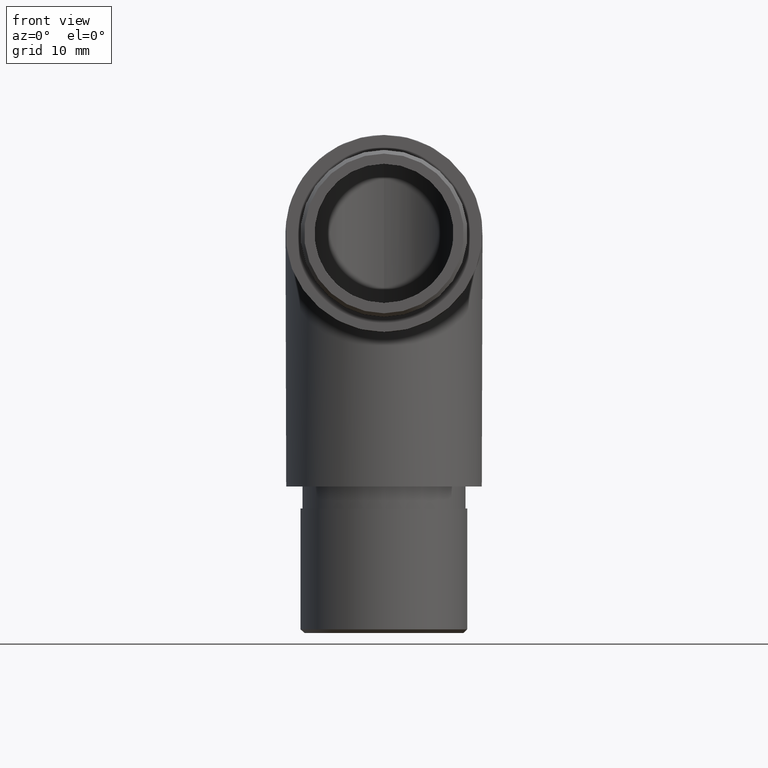
[diagram: clean part render]
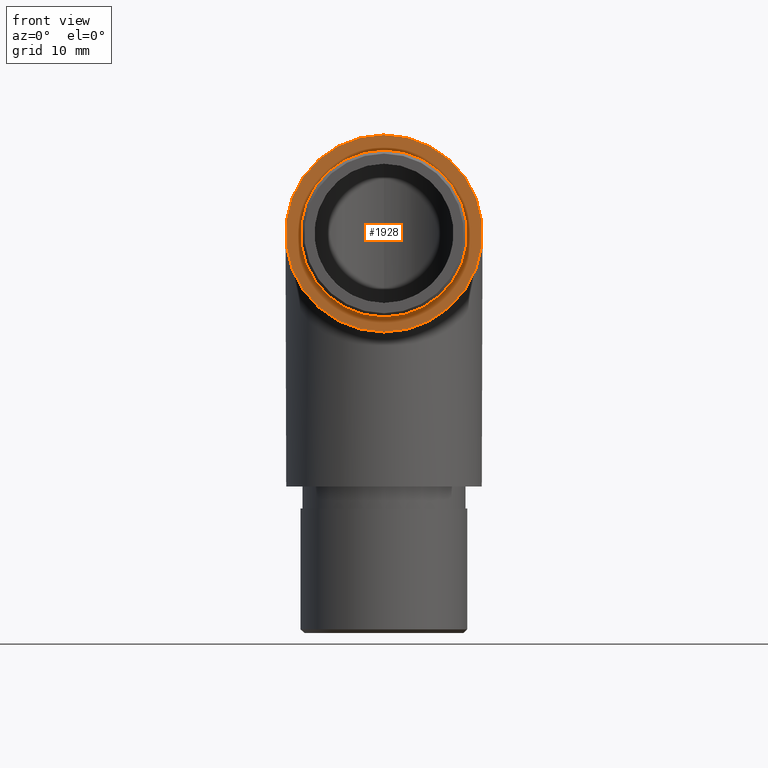
[diagram: same view with one face highlighted and labeled with its STEP entity id]
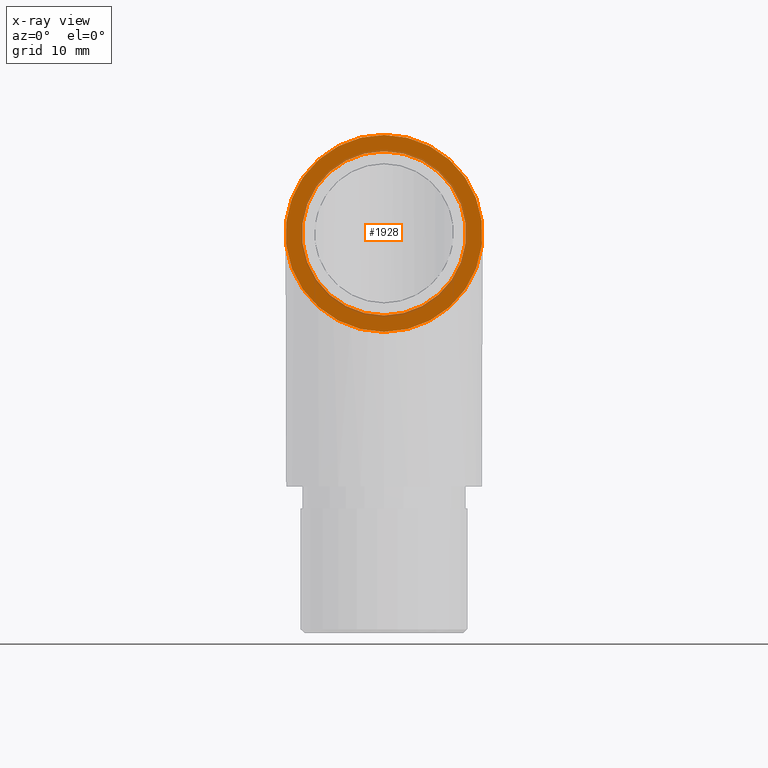
[diagram: x-ray of the same camera — body ghosted, the highlighted face saturated]
A machine part, front view. The second image highlights one B-rep face of the part: STEP entity #1928.
The next image is the same camera in x-ray: the body ghosted, the highlighted face saturated — about 8% of this face is hidden behind the body in this view.
In plain terms, the highlighted planar face has unit normal (0, 1, 0).
Its self-contained STEP definition (entity closure, byte-faithful):
#211 = DIRECTION ( 'NONE',  ( 0.0000000000000000000, 1.000000000000000000, 0.0000000000000000000 ) ) ;
#500 = DIRECTION ( 'NONE',  ( 0.0000000000000000000, 1.000000000000000000, 0.0000000000000000000 ) ) ;
#560 = DIRECTION ( 'NONE',  ( -0.0000000000000000000, -1.000000000000000000, -0.0000000000000000000 ) ) ;
#747 = ORIENTED_EDGE ( 'NONE', *, *, #2153, .F. ) ;
#1270 = PLANE ( 'NONE',  #3774 ) ;
#1570 = EDGE_LOOP ( 'NONE', ( #9106 ) ) ;
#1928 = ADVANCED_FACE ( 'NONE', ( #9617, #4377 ), #1270, .F. ) ;
#2085 = CARTESIAN_POINT ( 'NONE',  ( 0.0000000000000000000, 0.0000000000000000000, 11.20000000000000100 ) ) ;
#2153 = EDGE_CURVE ( 'NONE', #6280, #6280, #10281, .T. ) ;
#2310 = AXIS2_PLACEMENT_3D ( 'NONE', #3844, #560, #7112 ) ;
#2699 = DIRECTION ( 'NONE',  ( 0.0000000000000000000, 0.0000000000000000000, 1.000000000000000000 ) ) ;
#2893 = CARTESIAN_POINT ( 'NONE',  ( 0.0000000000000000000, 0.0000000000000000000, 13.44999999999999900 ) ) ;
#3493 = CARTESIAN_POINT ( 'NONE',  ( 0.0000000000000000000, 0.0000000000000000000, 0.0000000000000000000 ) ) ;
#3774 = AXIS2_PLACEMENT_3D ( 'NONE', #3493, #500, #8237 ) ;
#3844 = CARTESIAN_POINT ( 'NONE',  ( 0.0000000000000000000, 0.0000000000000000000, 0.0000000000000000000 ) ) ;
#3992 = EDGE_CURVE ( 'NONE', #6032, #6032, #6177, .T. ) ;
#4377 = FACE_BOUND ( 'NONE', #1570, .T. ) ;
#4751 = EDGE_LOOP ( 'NONE', ( #747 ) ) ;
#6032 = VERTEX_POINT ( 'NONE', #2085 ) ;
#6046 = AXIS2_PLACEMENT_3D ( 'NONE', #6085, #211, #2699 ) ;
#6085 = CARTESIAN_POINT ( 'NONE',  ( 0.0000000000000000000, 0.0000000000000000000, 0.0000000000000000000 ) ) ;
#6177 = CIRCLE ( 'NONE', #2310, 11.20000000000000100 ) ;
#6280 = VERTEX_POINT ( 'NONE', #2893 ) ;
#7112 = DIRECTION ( 'NONE',  ( 0.0000000000000000000, 0.0000000000000000000, 1.000000000000000000 ) ) ;
#8237 = DIRECTION ( 'NONE',  ( 0.0000000000000000000, -0.0000000000000000000, 1.000000000000000000 ) ) ;
#9106 = ORIENTED_EDGE ( 'NONE', *, *, #3992, .F. ) ;
#9617 = FACE_OUTER_BOUND ( 'NONE', #4751, .T. ) ;
#10281 = CIRCLE ( 'NONE', #6046, 13.44999999999999900 ) ;